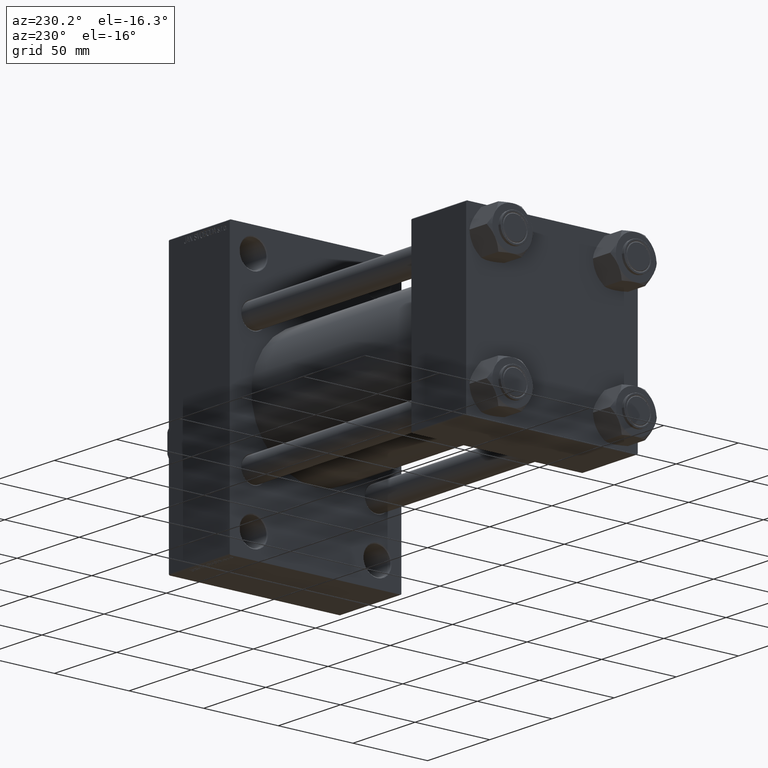
[diagram: clean part render]
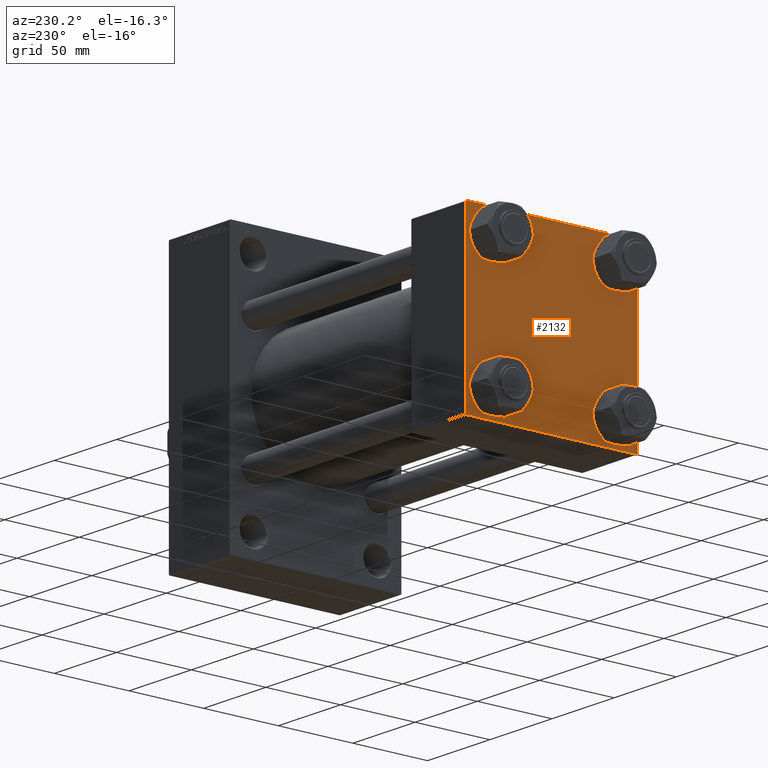
[diagram: same view with one face highlighted and labeled with its STEP entity id]
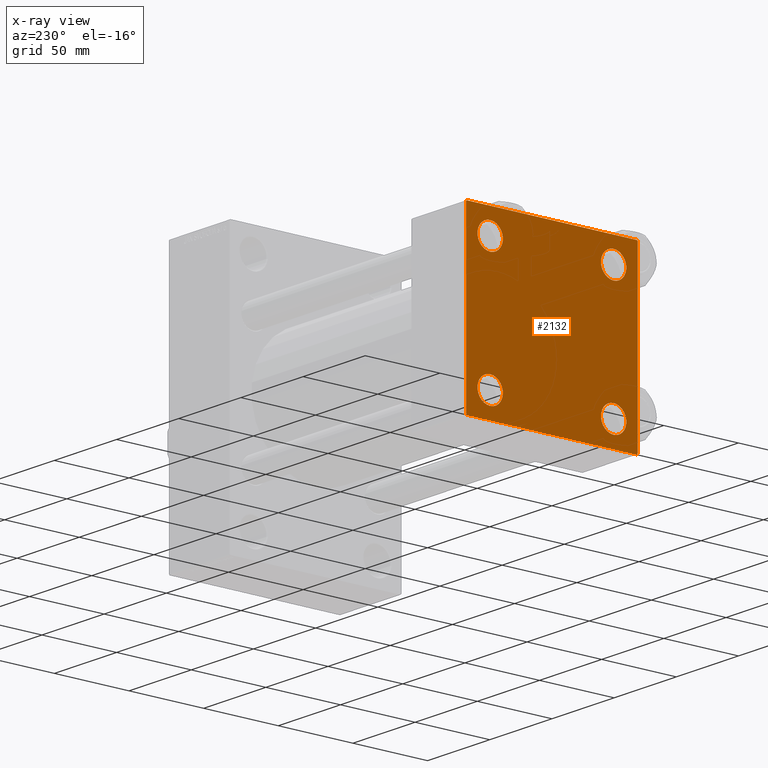
[diagram: x-ray of the same camera — body ghosted, the highlighted face saturated]
A machine part, auxiliary view. The second image highlights one B-rep face of the part: STEP entity #2132.
The next image is the same camera in x-ray: the body ghosted, the highlighted face saturated — about 0% of this face is hidden behind the body in this view.
In plain terms, the highlighted planar face has unit normal (-1, 0, 0).
Its self-contained STEP definition (entity closure, byte-faithful):
#148 = ORIENTED_EDGE ( 'NONE', *, *, #25510, .T. ) ;
#268 = VECTOR ( 'NONE', #39341, 1000.000000000000114 ) ;
#1192 = VERTEX_POINT ( 'NONE', #12747 ) ;
#1995 = CIRCLE ( 'NONE', #19740, 8.499999999999992895 ) ;
#2132 = ADVANCED_FACE ( 'NONE', ( #6534, #17912, #28810, #29286, #44307 ), #21306, .T. ) ;
#2441 = CARTESIAN_POINT ( 'NONE',  ( 0.000000000000000000, -41.34999999999998721, -32.85000000000001563 ) ) ;
#2649 = CIRCLE ( 'NONE', #38210, 8.499999999999992895 ) ;
#2905 = DIRECTION ( 'NONE',  ( -1.000000000000000000, 0.000000000000000000, -0.000000000000000000 ) ) ;
#2974 = CIRCLE ( 'NONE', #15354, 8.499999999999992895 ) ;
#3534 = LINE ( 'NONE', #25817, #19066 ) ;
#3750 = LINE ( 'NONE', #47822, #41022 ) ;
#5409 = CARTESIAN_POINT ( 'NONE',  ( 0.000000000000000000, 57.49999999999999289, -57.49999999999999289 ) ) ;
#5579 = EDGE_CURVE ( 'NONE', #29610, #35841, #32301, .T. ) ;
#6398 = CARTESIAN_POINT ( 'NONE',  ( 0.000000000000000000, -41.34999999999998721, -41.35000000000000853 ) ) ;
#6454 = DIRECTION ( 'NONE',  ( 0.000000000000000000, 0.000000000000000000, 1.000000000000000000 ) ) ;
#6497 = ORIENTED_EDGE ( 'NONE', *, *, #5579, .T. ) ;
#6534 = FACE_BOUND ( 'NONE', #9430, .T. ) ;
#6860 = CARTESIAN_POINT ( 'NONE',  ( 0.000000000000000000, -41.34999999999998721, 41.35000000000000853 ) ) ;
#7108 = CARTESIAN_POINT ( 'NONE',  ( 0.000000000000000000, 41.34999999999999432, -41.35000000000000142 ) ) ;
#7469 = DIRECTION ( 'NONE',  ( 1.000000000000000000, -0.000000000000000000, 0.000000000000000000 ) ) ;
#8243 = LINE ( 'NONE', #34619, #37982 ) ;
#9137 = AXIS2_PLACEMENT_3D ( 'NONE', #6398, #21643, #43916 ) ;
#9430 = EDGE_LOOP ( 'NONE', ( #27640, #26272 ) ) ;
#9901 = ORIENTED_EDGE ( 'NONE', *, *, #11408, .T. ) ;
#10101 = CARTESIAN_POINT ( 'NONE',  ( 0.000000000000000000, 41.34999999999999432, -41.35000000000000142 ) ) ;
#10284 = CARTESIAN_POINT ( 'NONE',  ( 0.000000000000000000, 57.25000000000081712, -57.24999999999922551 ) ) ;
#10327 = CARTESIAN_POINT ( 'NONE',  ( 0.000000000000000000, -41.34999999999998721, -49.85000000000000853 ) ) ;
#10437 = CARTESIAN_POINT ( 'NONE',  ( 0.000000000000000000, 57.49999999999999289, -57.00000000000000711 ) ) ;
#10572 = AXIS2_PLACEMENT_3D ( 'NONE', #36062, #2905, #36301 ) ;
#11408 = EDGE_CURVE ( 'NONE', #28648, #21917, #3750, .T. ) ;
#12166 = CARTESIAN_POINT ( 'NONE',  ( 0.000000000000000000, 41.34999999999999432, 32.85000000000000853 ) ) ;
#12463 = ORIENTED_EDGE ( 'NONE', *, *, #15936, .T. ) ;
#12747 = CARTESIAN_POINT ( 'NONE',  ( 0.000000000000000000, 57.49999999999999289, 57.00000000000003553 ) ) ;
#12897 = CARTESIAN_POINT ( 'NONE',  ( 0.000000000000000000, 57.00000000000002132, -57.49999999999999289 ) ) ;
#13019 = VECTOR ( 'NONE', #28637, 1000.000000000000000 ) ;
#13399 = DIRECTION ( 'NONE',  ( 0.000000000000000000, 0.000000000000000000, -1.000000000000000000 ) ) ;
#13632 = CARTESIAN_POINT ( 'NONE',  ( 0.000000000000000000, -57.00000000000000711, -57.50000000000000711 ) ) ;
#13645 = VERTEX_POINT ( 'NONE', #12166 ) ;
#13830 = VERTEX_POINT ( 'NONE', #14477 ) ;
#14370 = DIRECTION ( 'NONE',  ( 0.000000000000000000, 0.000000000000000000, 1.000000000000000000 ) ) ;
#14477 = CARTESIAN_POINT ( 'NONE',  ( 0.000000000000000000, -41.34999999999998721, 49.85000000000000853 ) ) ;
#15032 = ORIENTED_EDGE ( 'NONE', *, *, #38793, .T. ) ;
#15252 = EDGE_CURVE ( 'NONE', #13830, #29131, #34169, .T. ) ;
#15354 = AXIS2_PLACEMENT_3D ( 'NONE', #28947, #21213, #46658 ) ;
#15868 = ORIENTED_EDGE ( 'NONE', *, *, #30444, .T. ) ;
#15936 = EDGE_CURVE ( 'NONE', #1192, #40439, #8243, .T. ) ;
#16109 = ORIENTED_EDGE ( 'NONE', *, *, #38144, .F. ) ;
#16328 = ORIENTED_EDGE ( 'NONE', *, *, #23044, .T. ) ;
#17039 = LINE ( 'NONE', #47047, #13019 ) ;
#17171 = CARTESIAN_POINT ( 'NONE',  ( 0.000000000000000000, -57.50000000000000711, -57.00000000000000711 ) ) ;
#17497 = CIRCLE ( 'NONE', #32971, 8.499999999999992895 ) ;
#17912 = FACE_BOUND ( 'NONE', #35620, .T. ) ;
#18047 = CARTESIAN_POINT ( 'NONE',  ( 0.000000000000000000, 41.34999999999999432, 49.85000000000000142 ) ) ;
#18700 = VERTEX_POINT ( 'NONE', #38269 ) ;
#18929 = DIRECTION ( 'NONE',  ( 0.000000000000000000, 0.000000000000000000, 1.000000000000000000 ) ) ;
#19066 = VECTOR ( 'NONE', #21457, 1000.000000000000114 ) ;
#19740 = AXIS2_PLACEMENT_3D ( 'NONE', #32773, #40286, #47553 ) ;
#20374 = VERTEX_POINT ( 'NONE', #18047 ) ;
#21213 = DIRECTION ( 'NONE',  ( 1.000000000000000000, -0.000000000000000000, 0.000000000000000000 ) ) ;
#21306 = PLANE ( 'NONE',  #10572 ) ;
#21395 = DIRECTION ( 'NONE',  ( 1.000000000000000000, -0.000000000000000000, 0.000000000000000000 ) ) ;
#21457 = DIRECTION ( 'NONE',  ( 0.000000000000000000, 0.7071067811865573427, -0.7071067811865376918 ) ) ;
#21514 = CARTESIAN_POINT ( 'NONE',  ( 0.000000000000000000, 41.34999999999999432, -49.85000000000000142 ) ) ;
#21633 = DIRECTION ( 'NONE',  ( 1.000000000000000000, -0.000000000000000000, 0.000000000000000000 ) ) ;
#21643 = DIRECTION ( 'NONE',  ( 1.000000000000000000, -0.000000000000000000, 0.000000000000000000 ) ) ;
#21878 = DIRECTION ( 'NONE',  ( 0.000000000000000000, 0.000000000000000000, 1.000000000000000000 ) ) ;
#21917 = VERTEX_POINT ( 'NONE', #22243 ) ;
#22243 = CARTESIAN_POINT ( 'NONE',  ( 0.000000000000000000, -57.00000000000003553, 57.49999999999999289 ) ) ;
#22529 = EDGE_LOOP ( 'NONE', ( #41329, #44987 ) ) ;
#23044 = EDGE_CURVE ( 'NONE', #40439, #25973, #42984, .T. ) ;
#23440 = ORIENTED_EDGE ( 'NONE', *, *, #46461, .T. ) ;
#23815 = LINE ( 'NONE', #5409, #28618 ) ;
#23846 = CARTESIAN_POINT ( 'NONE',  ( 0.000000000000000000, -41.34999999999998721, -41.35000000000000853 ) ) ;
#24870 = DIRECTION ( 'NONE',  ( 1.000000000000000000, -0.000000000000000000, 0.000000000000000000 ) ) ;
#25177 = CARTESIAN_POINT ( 'NONE',  ( 0.000000000000000000, -41.34999999999998721, 32.85000000000001563 ) ) ;
#25205 = AXIS2_PLACEMENT_3D ( 'NONE', #7108, #21395, #21878 ) ;
#25510 = EDGE_CURVE ( 'NONE', #35841, #29610, #2649, .T. ) ;
#25817 = CARTESIAN_POINT ( 'NONE',  ( 0.000000000000000000, 57.24999999999922551, 57.25000000000081712 ) ) ;
#25973 = VERTEX_POINT ( 'NONE', #12897 ) ;
#26272 = ORIENTED_EDGE ( 'NONE', *, *, #28861, .T. ) ;
#26730 = AXIS2_PLACEMENT_3D ( 'NONE', #44360, #47509, #18929 ) ;
#27640 = ORIENTED_EDGE ( 'NONE', *, *, #15252, .T. ) ;
#27671 = LINE ( 'NONE', #35411, #30911 ) ;
#27678 = DIRECTION ( 'NONE',  ( 0.000000000000000000, -1.000000000000000000, -1.206764157201257045E-16 ) ) ;
#28017 = ORIENTED_EDGE ( 'NONE', *, *, #31642, .T. ) ;
#28618 = VECTOR ( 'NONE', #27678, 1000.000000000000000 ) ;
#28637 = DIRECTION ( 'NONE',  ( 0.000000000000000000, -1.000000000000000000, -1.206764157201257045E-16 ) ) ;
#28648 = VERTEX_POINT ( 'NONE', #34047 ) ;
#28810 = FACE_BOUND ( 'NONE', #22529, .T. ) ;
#28861 = EDGE_CURVE ( 'NONE', #29131, #13830, #41408, .T. ) ;
#28947 = CARTESIAN_POINT ( 'NONE',  ( 0.000000000000000000, 41.34999999999999432, 41.35000000000000142 ) ) ;
#29131 = VERTEX_POINT ( 'NONE', #25177 ) ;
#29286 = FACE_BOUND ( 'NONE', #47888, .T. ) ;
#29610 = VERTEX_POINT ( 'NONE', #10327 ) ;
#29913 = EDGE_CURVE ( 'NONE', #37417, #34611, #46082, .T. ) ;
#30138 = CARTESIAN_POINT ( 'NONE',  ( 0.000000000000000000, 41.34999999999999432, -32.85000000000000853 ) ) ;
#30307 = AXIS2_PLACEMENT_3D ( 'NONE', #6860, #21633, #14370 ) ;
#30330 = EDGE_CURVE ( 'NONE', #34611, #37417, #17497, .T. ) ;
#30444 = EDGE_CURVE ( 'NONE', #18700, #1192, #3534, .T. ) ;
#30676 = ORIENTED_EDGE ( 'NONE', *, *, #41990, .T. ) ;
#30911 = VECTOR ( 'NONE', #13399, 1000.000000000000000 ) ;
#31642 = EDGE_CURVE ( 'NONE', #20374, #13645, #1995, .T. ) ;
#32255 = DIRECTION ( 'NONE',  ( 0.000000000000000000, -0.7071067811865474617, 0.7071067811865474617 ) ) ;
#32301 = CIRCLE ( 'NONE', #9137, 8.499999999999992895 ) ;
#32773 = CARTESIAN_POINT ( 'NONE',  ( 0.000000000000000000, 41.34999999999999432, 41.35000000000000142 ) ) ;
#32971 = AXIS2_PLACEMENT_3D ( 'NONE', #10101, #24870, #6454 ) ;
#33287 = VECTOR ( 'NONE', #32255, 1000.000000000000114 ) ;
#34047 = CARTESIAN_POINT ( 'NONE',  ( 0.000000000000000000, -57.50000000000000711, 57.00000000000000711 ) ) ;
#34057 = EDGE_LOOP ( 'NONE', ( #12463, #16328, #30676, #23440, #42703, #9901, #16109, #15868 ) ) ;
#34146 = DIRECTION ( 'NONE',  ( 0.000000000000000000, 0.000000000000000000, -1.000000000000000000 ) ) ;
#34169 = CIRCLE ( 'NONE', #30307, 8.499999999999992895 ) ;
#34611 = VERTEX_POINT ( 'NONE', #21514 ) ;
#34619 = CARTESIAN_POINT ( 'NONE',  ( 0.000000000000000000, 57.49999999999999289, 57.50000000000000711 ) ) ;
#35411 = CARTESIAN_POINT ( 'NONE',  ( 0.000000000000000000, -57.50000000000000711, 57.49999999999999289 ) ) ;
#35620 = EDGE_LOOP ( 'NONE', ( #148, #6497 ) ) ;
#35841 = VERTEX_POINT ( 'NONE', #2441 ) ;
#36062 = CARTESIAN_POINT ( 'NONE',  ( 0.000000000000000000, 0.000000000000000000, 0.000000000000000000 ) ) ;
#36189 = DIRECTION ( 'NONE',  ( -0.000000000000000000, 0.7071067811865376918, 0.7071067811865573427 ) ) ;
#36301 = DIRECTION ( 'NONE',  ( -0.000000000000000000, 0.000000000000000000, 1.000000000000000000 ) ) ;
#37001 = DIRECTION ( 'NONE',  ( 0.000000000000000000, 0.000000000000000000, 1.000000000000000000 ) ) ;
#37417 = VERTEX_POINT ( 'NONE', #30138 ) ;
#37982 = VECTOR ( 'NONE', #34146, 1000.000000000000000 ) ;
#38144 = EDGE_CURVE ( 'NONE', #18700, #21917, #17039, .T. ) ;
#38210 = AXIS2_PLACEMENT_3D ( 'NONE', #23846, #7469, #37001 ) ;
#38269 = CARTESIAN_POINT ( 'NONE',  ( 0.000000000000000000, 57.00000000000000711, 57.50000000000000711 ) ) ;
#38793 = EDGE_CURVE ( 'NONE', #13645, #20374, #2974, .T. ) ;
#39341 = DIRECTION ( 'NONE',  ( -0.000000000000000000, -0.7071067811865376918, -0.7071067811865573427 ) ) ;
#39541 = CARTESIAN_POINT ( 'NONE',  ( 0.000000000000000000, -57.25000000000000711, -57.25000000000000711 ) ) ;
#40286 = DIRECTION ( 'NONE',  ( 1.000000000000000000, -0.000000000000000000, 0.000000000000000000 ) ) ;
#40439 = VERTEX_POINT ( 'NONE', #10437 ) ;
#41022 = VECTOR ( 'NONE', #36189, 1000.000000000000114 ) ;
#41155 = EDGE_CURVE ( 'NONE', #28648, #43607, #27671, .T. ) ;
#41179 = VERTEX_POINT ( 'NONE', #13632 ) ;
#41329 = ORIENTED_EDGE ( 'NONE', *, *, #29913, .T. ) ;
#41408 = CIRCLE ( 'NONE', #26730, 8.499999999999992895 ) ;
#41990 = EDGE_CURVE ( 'NONE', #25973, #41179, #23815, .T. ) ;
#42703 = ORIENTED_EDGE ( 'NONE', *, *, #41155, .F. ) ;
#42984 = LINE ( 'NONE', #10284, #268 ) ;
#43177 = LINE ( 'NONE', #39541, #33287 ) ;
#43607 = VERTEX_POINT ( 'NONE', #17171 ) ;
#43916 = DIRECTION ( 'NONE',  ( 0.000000000000000000, 0.000000000000000000, 1.000000000000000000 ) ) ;
#44307 = FACE_OUTER_BOUND ( 'NONE', #34057, .T. ) ;
#44360 = CARTESIAN_POINT ( 'NONE',  ( 0.000000000000000000, -41.34999999999998721, 41.35000000000000853 ) ) ;
#44987 = ORIENTED_EDGE ( 'NONE', *, *, #30330, .T. ) ;
#46082 = CIRCLE ( 'NONE', #25205, 8.499999999999992895 ) ;
#46461 = EDGE_CURVE ( 'NONE', #41179, #43607, #43177, .T. ) ;
#46658 = DIRECTION ( 'NONE',  ( 0.000000000000000000, 0.000000000000000000, 1.000000000000000000 ) ) ;
#47047 = CARTESIAN_POINT ( 'NONE',  ( 0.000000000000000000, 57.49999999999999289, 57.50000000000000711 ) ) ;
#47509 = DIRECTION ( 'NONE',  ( 1.000000000000000000, -0.000000000000000000, 0.000000000000000000 ) ) ;
#47553 = DIRECTION ( 'NONE',  ( 0.000000000000000000, 0.000000000000000000, 1.000000000000000000 ) ) ;
#47822 = CARTESIAN_POINT ( 'NONE',  ( -0.000000000000000000, -57.25000000000081712, 57.24999999999922551 ) ) ;
#47888 = EDGE_LOOP ( 'NONE', ( #28017, #15032 ) ) ;